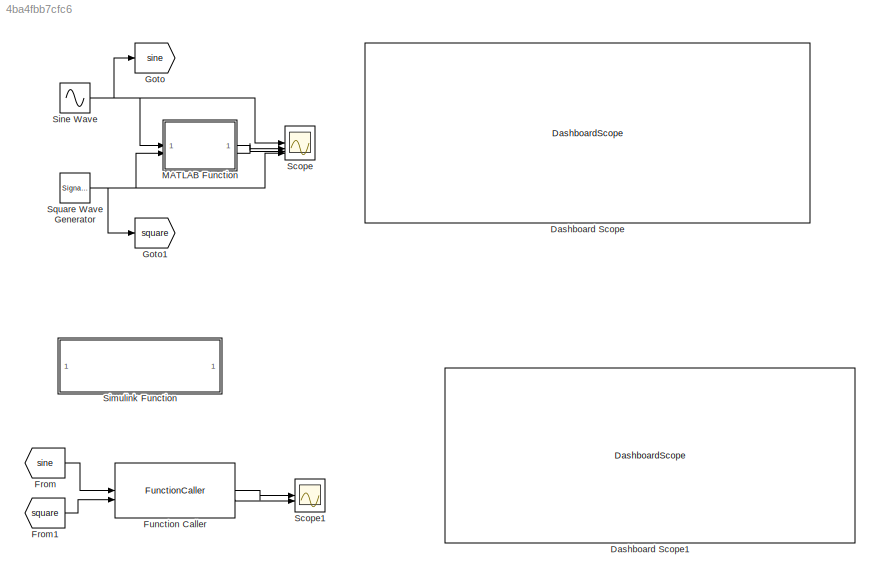
MODEL slx_4ba4fbb7cfc6
KIND model
CONFIG AbsTol = auto
CONFIG EnableMultiTasking = off
CONFIG FixedStep = 0.01
CONFIG MaxStep = 0.1
CONFIG MinStep = auto
CONFIG RelTol = 1e-3
CONFIG SampleTimeConstraint = Unconstrained
CONFIG SolverName = FixedStepAuto
CONFIG StartTime = 0.0
CONFIG StopTime = 10
BLOCK [DashboardScope] Dashboard Scope
  ScaleAtStop = off
  UpdateMode = Scroll
BLOCK [DashboardScope] Dashboard Scope1
  ScaleAtStop = off
  UpdateMode = Scroll
BLOCK [From] From
  GotoTag = sine
BLOCK [From] From1
  GotoTag = square
BLOCK [FunctionCaller] Function Caller
  FunctionPrototype = [summ,product] = f(u,v)
  InputArgumentSpecifications = <Enter example>
  OutputArgumentSpecifications = <Enter example>
BLOCK [Goto] Goto
  GotoTag = sine
BLOCK [Goto] Goto1
  GotoTag = square
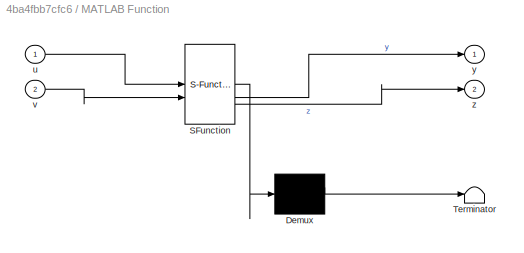
BLOCK [SubSystem] MATLAB Function
  ErrorFcn = Stateflow.Translate.translate
  LibrarySourceBlock = simulink/User-Defined\nFunctions/MATLAB Function
  PermitHierarchicalResolution = ExplicitOnly
  SFBlockType = MATLAB Function
  TreatAsAtomicUnit = on
BLOCK [Demux] MATLAB Function/ Demux 
  Outputs = 1
BLOCK [S-Function] MATLAB Function/ SFunction 
  EnableBusSupport = on
  FunctionName = sf_sfun
  PortCounts = [2 3]
  SFcnIsStateOwnerBlock = off
  SFunctionDeploymentMode = off
  Tag = Stateflow S-Function 2
BLOCK [Terminator] MATLAB Function/ Terminator 
BLOCK [Inport] MATLAB Function/u
BLOCK [Inport] MATLAB Function/v
  Port = 2
BLOCK [Outport] MATLAB Function/y
BLOCK [Outport] MATLAB Function/z
  Port = 2
BLOCK [Scope] Scope
  Floating = off
  NumInputPorts = 4
  ScopeSpecificationString = Simulink.scopes.TimeScopeBlockCfg('CurrentConfiguration', extmgr.ConfigurationSet(extmgr.Configuration('Core','General UI',true),extmgr.Configuration('Core','Source UI',true),extmgr.Configuration('Sources','WiredSimulink',true),extmgr.Configuration('Visuals','Time Domain',true,'SerializedDisplays',{struct('MinYLimReal','-2.47229','MaxYLimReal','2.49692','YLabelReal','','MinYLimMag','0.00000','MaxY...<+1447ch>
BLOCK [Scope] Scope1
  Floating = off
  NumInputPorts = 2
  ScopeSpecificationString = Simulink.scopes.TimeScopeBlockCfg('CurrentConfiguration', extmgr.ConfigurationSet(extmgr.Configuration('Core','General UI',true),extmgr.Configuration('Core','Source UI',true),extmgr.Configuration('Sources','WiredSimulink',true,'DataLoggingVariableName','ScopeData1'),extmgr.Configuration('Visuals','Time Domain',true),extmgr.Configuration('Tools','Plot Navigation',true),extmgr.Configuration('Tools',...<+40ch>
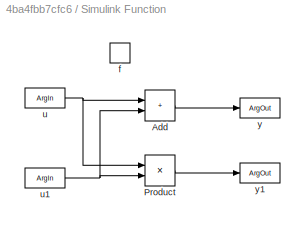
BLOCK [SubSystem] Simulink Function
  TreatAsAtomicUnit = on
BLOCK [Sum] Simulink Function/Add
  IconShape = rectangular
BLOCK [Product] Simulink Function/Product
BLOCK [TriggerPort] Simulink Function/f
  FunctionName = f
  FunctionVisibility = scoped
  IsSimulinkFunction = on
  StatesWhenEnabling = held
  TriggerType = function-call
  VariantControl = (inherit)
BLOCK [ArgIn] Simulink Function/u
  ArgumentName = u
  DisableCoverage = on
BLOCK [ArgIn] Simulink Function/u1
  ArgumentName = v
  DisableCoverage = on
  Port = 2
BLOCK [ArgOut] Simulink Function/y
  ArgumentName = summ
  DisableCoverage = on
BLOCK [ArgOut] Simulink Function/y1
  ArgumentName = product
  DisableCoverage = on
  Port = 2
BLOCK [Sin] Sine Wave
  SampleTime = 0
BLOCK [SignalGenerator] Square Wave Generator
  WaveForm = square
LINE From1:1 -> Function Caller:2
LINE From:1 -> Function Caller:1
LINE Function Caller:1 -> Scope1:1
LINE Function Caller:2 -> Scope1:2
LINE MATLAB Function:1 -> Scope:2
LINE MATLAB Function:2 -> Scope:3
LINE Simulink Function/Add:1 -> Simulink Function/y:1
LINE Simulink Function/Product:1 -> Simulink Function/y1:1
NET Simulink Function/u1:1 -> Simulink Function/Add:2, Simulink Function/Product:2
NET Simulink Function/u:1 -> Simulink Function/Add:1, Simulink Function/Product:1
NET Sine Wave:1 -> Goto:1, MATLAB Function:1, Scope:1
NET Square Wave Generator:1 -> Goto1:1, MATLAB Function:2, Scope:4
note: NET lines group one-source signal fan-out (src -> all destinations, sorted); 1:1 wires keep LINE
CHART MATLAB Function states=1 transitions=1
  STATE_LABEL 'eML_blk_kernel()'
  STATE_LABEL 'SCRIPT:\nfunction [y,z] = fcn(u,v)\ny=u*v;\nz=u+v;\n'
CHART  states=0 transitions=0
